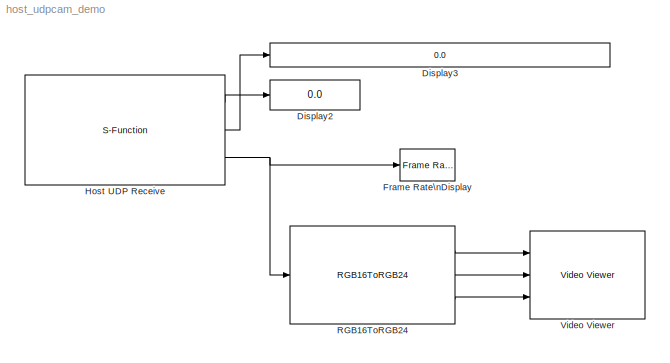
MODEL host_udpcam_demo
KIND model
BLOCK [Display] Display2
  Decimation = 1
  Lockdown = off
  Ports = [1]
BLOCK [Display] Display3
  Decimation = 1
  Lockdown = off
  Ports = [1]
BLOCK [Reference] Frame Rate\nDisplay  REF=vipsnks/Frame Rate\nDisplay
  DialogController = vipDDGCreate
  DialogControllerArgs = DataTag0
  Ports = [1]
  SourceBlock = vipsnks/Frame Rate\nDisplay
  SourceType = Frame Rate Display
  UpdateRate = 10
BLOCK [S-Function] Host UDP Receive
  EnableBusSupport = off
  FunctionName = waijung_socket
  MaskCallbackString = waijung_socket_callback('conf');|||waijung_socket_callback('netadapter');|||||waijung_socket_callback('datasource');|||waijung_socket_callback('datatype');|waijung_socket_callback('datatype');|waijung_socket_callback('datatype');|waijung_socket_callback('datatype');|waijung_socket_callback('datatype');|waijung_socket_callback('datatype');|waijung_socket_callback('datatype');|waijung_socket_callbac...<+99ch>
  MaskDescription = Port:\n - Port number to open for data receive.\nTransfer:\n - Blocking: CPU is blocked durring wait for data.\nTimeout:\n - Timeout in seconds for wait for data.
  MaskDisplay = text(0.05, 0.5, '[Host UDP Receive]\\nPort: 7\\nTs (sec): 0.0001','ver','middle','hor','left'); port_label('output', 1,'Remote Port'); port_label('output', 2,'Remote IP(1:4)'); port_label('output', 3,'Data(1:19200)');
  MaskEnableString = on,off,on,on,off,on,off,on,on,on,on,on,on,on,on,on,on,on,on,on,on,off,on,on,on,on,on,on,on,on,off
  MaskHelp = web(fullfile(waijungdocroot,'waijung_socket_host_udp_receive.htm'), '-browser')
  MaskIconFrame = on
  MaskIconOpaque = on
  MaskIconRotate = none
  MaskIconUnits = normalized
  MaskInitialization = waijung_socket_callback('init');
  MaskPortRotate = default
  MaskPromptString = Configuration|Protocol|Port|Host Network Adapter|Address|Echo (Return the receiving data back to sender)|Transfer|Timeout (Seconds)|Data|Data type|Port width|Number of data port, type DOUBLE|Number of data port, type SINGLE|Number of data port, type INT8|Number of data port, type UINT8|Number of data port, type INT16|Number of data port, type UINT16|Number of data port, type INT32|Number of data p...<+244ch>
  MaskSelfModifiable = on
  MaskStyleString = popup(HostSend|HostReceive|TargetSend|TargetReceive),popup(TCP|UDP),edit,popup(Intel(R) 82579LM Gigabit Network Connection),edit,checkbox,popup(Blocking|Non-blocking),edit,popup(Ports|Vector|BufferStream),popup(double|single|int8|uint8|int16|uint16|int32|uint32),edit,edit,edit,edit,edit,edit,edit,edit,edit,edit,edit,edit,edit,edit,edit,edit,edit,edit,edit,edit,edit
  MaskTabNameString = ,,,,,,,,,,,,,,,,,,,,,,,,,,,,,,
  MaskToolTipString = on,on,on,on,on,on,on,on,on,on,on,on,on,on,on,on,on,on,on,on,on,on,on,on,on,on,on,on,on,on,on
  MaskTunableValueString = off,off,off,off,off,off,off,off,off,off,off,off,off,off,off,off,off,off,off,off,off,off,off,off,off,off,off,off,off,off,off
  MaskType = waijung_socket
  MaskValueString = HostReceive|UDP|7|Intel(R) 82579LM Gigabit Network Connection|0.0.0.0|off|Blocking|5|BufferStream|uint16|120*160|0|0|0|0|0|0|0|1|0|0.0001|HostUDPReceive|[]|[]|{}|[5,3,5]|[1,4,19200]|{'Remote Port','Remote IP(1:4)','Data(1:19200)'}|0|[]|[7,2,1,5000,1]
  MaskVarAliasString = ,,,,,,,,,,,,,,,,,,,,,,,,,,,,,,
  MaskVariables = conf=&1;protocol=&2;port=&3;netadapter=&4;address=&5;echo=&6;transfer=&7;timeout=&8;datasource=&9;datatype=&10;datacount=&11;porttype_double=@12;porttype_single=@13;porttype_int8=@14;porttype_uint8=@15;porttype_int16=@16;porttype_uint16=@17;porttype_int32=@18;porttype_uint32=@19;portpinstr=&20;sampletime=@21;blockid=&22;inputporttype=@23;inputportwidth=@24;inputportlabel=&25;outputporttype=@26;out...<+77ch>
  MaskVisibilityString = off,off,on,on,on,off,on,on,on,on,on,off,off,off,off,off,off,off,off,off,on,off,off,off,off,off,off,off,off,off,off
  Parameters = conf,inputporttype,inputportwidth,outputporttype,outputportwidth,address,port,optionstring,sampletime,blockid,options
  Ports = [0, 3]
BLOCK [Reference] RGB16ToRGB24  REF=waijung_image_sensor_lib/RGB16ToRGB24
  Ports = [1, 3]
  SourceBlock = waijung_image_sensor_lib/RGB16ToRGB24
  SourceType = waijung_image_processing
  blockid = RGB16ToRGB24
  colorseparate = on
  column = 120
  compat = 0
  conf = RGB16ToRGB24
  inputalignment = RGB
  inputportlabel = {'Input'}
  inputporttype = [5]
  inputportwidth = [19200]
  optionstring = []
  outputalignment = BGR
  outputportlabel = {'B','G','R'}
  outputporttype = [3  3 3]
  outputportwidth = [120 120 120]
  portpinstr = 0
  row = 160
  sampletime = -1
  simparams = [0 160 0 1]
BLOCK [Reference] Video Viewer  REF=vipsnks/Video Viewer
  AxisZoom = on
  DialogControllerArgs = DataTag2
  FigPos = [428 938 475 382]
  OpenAtMdlStart = on
  Ports = [3]
  SourceBlock = vipsnks/Video Viewer
  SourceType = Video Viewer
  UserData = DataTag1
  UserDataPersistent = on
  colormapValue = gray(256)
  imagePorts = Separate color signals
  inputType = Obsolete7b
  maxInputVal = 255
  minInputVal = 0
  specRange = off
  trueSizedOnce = off
  useColorMap = off
LINE Host UDP Receive:1 -> Display2:1
LINE Host UDP Receive:2 -> Display3:1
NET Host UDP Receive:3 -> Frame Rate\nDisplay:1, RGB16ToRGB24:1
LINE RGB16ToRGB24:1 -> Video Viewer:1
LINE RGB16ToRGB24:2 -> Video Viewer:2
LINE RGB16ToRGB24:3 -> Video Viewer:3
note: NET lines group one-source signal fan-out (src -> all destinations, sorted); 1:1 wires keep LINE
